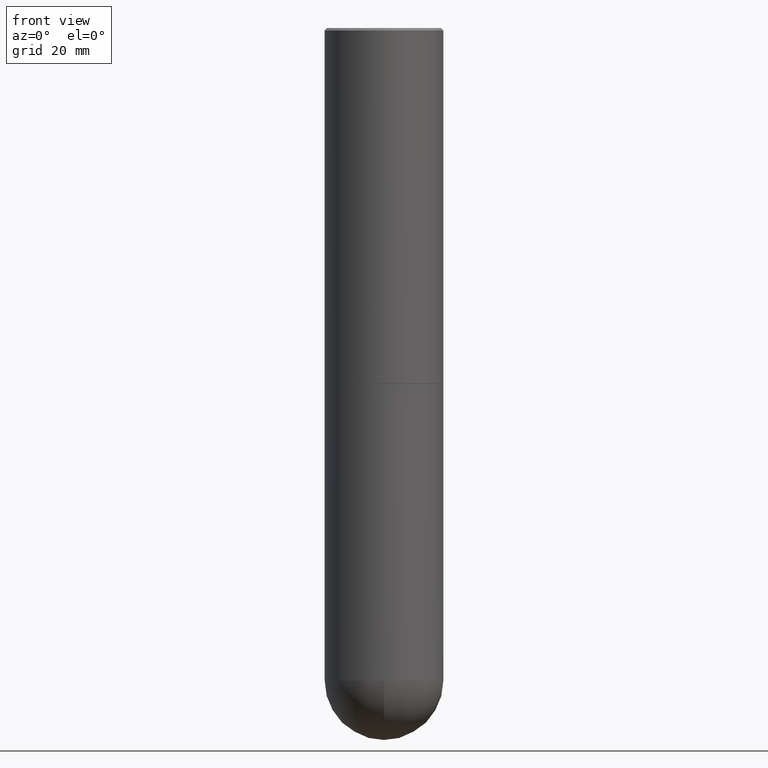
[diagram: clean part render]
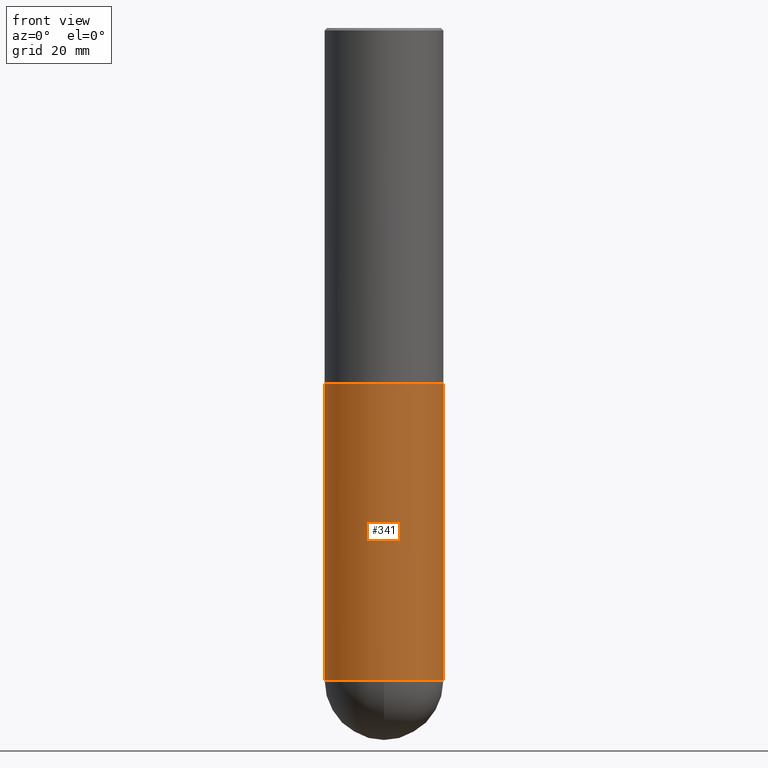
[diagram: same view with one face highlighted and labeled with its STEP entity id]
A machine part, front view. The second image highlights one B-rep face of the part: STEP entity #341.
In plain terms, the highlighted cylindrical surface (partial cylindrical patch) has radius 12.5006 mm, axis along (-0, 0, 1).
Its self-contained STEP definition (entity closure, byte-faithful):
#4 = DIRECTION ( 'NONE',  ( 1.000000000000000000, -6.982962677686265922E-15, 4.876176775795935793E-29 ) ) ;
#22 = AXIS2_PLACEMENT_3D ( 'NONE', #309, #222, #253 ) ;
#33 = EDGE_CURVE ( 'NONE', #307, #366, #163, .T. ) ;
#35 = LINE ( 'NONE', #234, #224 ) ;
#37 = AXIS2_PLACEMENT_3D ( 'NONE', #226, #166, #370 ) ;
#44 = EDGE_CURVE ( 'NONE', #307, #178, #60, .T. ) ;
#45 = VERTEX_POINT ( 'NONE', #255 ) ;
#59 = CARTESIAN_POINT ( 'NONE',  ( -0.4921499999999999764, -1.110801765337101547E-14, -2.952700000000000102 ) ) ;
#60 = LINE ( 'NONE', #188, #287 ) ;
#62 = EDGE_CURVE ( 'NONE', #366, #45, #170, .T. ) ;
#93 = DIRECTION ( 'NONE',  ( -2.445468806185136877E-29, 3.491481338843145188E-15, 1.000000000000000000 ) ) ;
#96 = ORIENTED_EDGE ( 'NONE', *, *, #401, .F. ) ;
#114 = AXIS2_PLACEMENT_3D ( 'NONE', #312, #121, #399 ) ;
#115 = ORIENTED_EDGE ( 'NONE', *, *, #44, .F. ) ;
#121 = DIRECTION ( 'NONE',  ( -2.445468806185136597E-29, 3.491481338843145583E-15, 1.000000000000000000 ) ) ;
#141 = VERTEX_POINT ( 'NONE', #392 ) ;
#163 = CIRCLE ( 'NONE', #22, 0.4921499999999999764 ) ;
#165 = DIRECTION ( 'NONE',  ( -2.445468806185136877E-29, 3.491481338843145188E-15, 1.000000000000000000 ) ) ;
#166 = DIRECTION ( 'NONE',  ( -2.445468806185136597E-29, 3.491481338843145583E-15, 1.000000000000000000 ) ) ;
#170 = CIRCLE ( 'NONE', #114, 0.4921499999999999764 ) ;
#178 = VERTEX_POINT ( 'NONE', #59 ) ;
#188 = CARTESIAN_POINT ( 'NONE',  ( -0.4921499999999999764, 3.496936074043332897E-15, -2.420853904668951509E-29 ) ) ;
#192 = EDGE_CURVE ( 'NONE', #45, #141, #35, .T. ) ;
#210 = CIRCLE ( 'NONE', #37, 0.4921499999999999764 ) ;
#215 = CARTESIAN_POINT ( 'NONE',  ( -3.496936074043201946E-15, -0.4921500000000192387, -5.413349999999997664 ) ) ;
#222 = DIRECTION ( 'NONE',  ( -2.445468806185136597E-29, 3.491481338843145583E-15, 1.000000000000000000 ) ) ;
#224 = VECTOR ( 'NONE', #165, 39.37007874015748143 ) ;
#225 = EDGE_LOOP ( 'NONE', ( #115, #334, #263, #296, #96 ) ) ;
#226 = CARTESIAN_POINT ( 'NONE',  ( 7.220735744022852519E-29, -1.030929694920215502E-14, -2.952700000000000102 ) ) ;
#234 = CARTESIAN_POINT ( 'NONE',  ( 0.4921499999999999764, -3.436665081823295777E-15, 2.399810400207969603E-29 ) ) ;
#253 = DIRECTION ( 'NONE',  ( 1.000000000000000000, -6.982962677686265922E-15, 0.000000000000000000 ) ) ;
#255 = CARTESIAN_POINT ( 'NONE',  ( 0.4921499999999999764, -1.804161880923764651E-14, -5.413349999999999440 ) ) ;
#262 = FACE_OUTER_BOUND ( 'NONE', #225, .T. ) ;
#263 = ORIENTED_EDGE ( 'NONE', *, *, #62, .T. ) ;
#287 = VECTOR ( 'NONE', #93, 39.37007874015748143 ) ;
#295 = DIRECTION ( 'NONE',  ( -2.445468806185136597E-29, 3.491481338843145583E-15, 1.000000000000000000 ) ) ;
#296 = ORIENTED_EDGE ( 'NONE', *, *, #192, .T. ) ;
#307 = VERTEX_POINT ( 'NONE', #388 ) ;
#309 = CARTESIAN_POINT ( 'NONE',  ( 1.323817856196230713E-28, -1.890061050562653856E-14, -5.413349999999999440 ) ) ;
#312 = CARTESIAN_POINT ( 'NONE',  ( 1.323817856196230713E-28, -1.890061050562653856E-14, -5.413349999999999440 ) ) ;
#320 = CARTESIAN_POINT ( 'NONE',  ( 0.000000000000000000, 0.000000000000000000, 0.000000000000000000 ) ) ;
#334 = ORIENTED_EDGE ( 'NONE', *, *, #33, .T. ) ;
#341 = ADVANCED_FACE ( 'NONE', ( #262 ), #349, .T. ) ;
#349 = CYLINDRICAL_SURFACE ( 'NONE', #383, 0.4921499999999999764 ) ;
#366 = VERTEX_POINT ( 'NONE', #215 ) ;
#370 = DIRECTION ( 'NONE',  ( 1.000000000000000000, -6.982962677686265922E-15, 0.000000000000000000 ) ) ;
#383 = AXIS2_PLACEMENT_3D ( 'NONE', #320, #295, #4 ) ;
#388 = CARTESIAN_POINT ( 'NONE',  ( -0.4921499999999999764, -1.110801765337101862E-14, -5.413349999999999440 ) ) ;
#392 = CARTESIAN_POINT ( 'NONE',  ( 0.4921499999999999764, -1.374596203102545079E-14, -2.952700000000000102 ) ) ;
#399 = DIRECTION ( 'NONE',  ( 1.000000000000000000, -6.982962677686265922E-15, 0.000000000000000000 ) ) ;
#401 = EDGE_CURVE ( 'NONE', #178, #141, #210, .T. ) ;